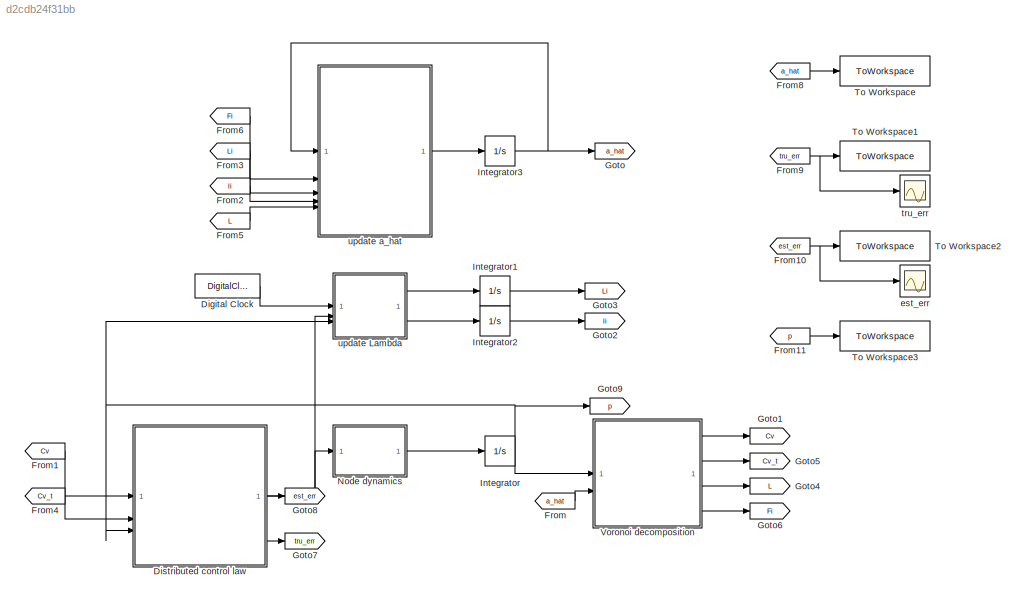
MODEL slx_d2cdb24f31bb
KIND model
CONFIG AbsTol = auto
CONFIG EnableMultiTasking = off
CONFIG FixedStep = step_size
CONFIG MaxStep = 0.01
CONFIG MinStep = 0.001
CONFIG RelTol = 1e-3
CONFIG SampleTimeConstraint = Unconstrained
CONFIG SolverName = ode1
CONFIG StartTime = 0.0
CONFIG StopTime = Tf
BLOCK [DigitalClock] Digital Clock
  SampleTime = step_size
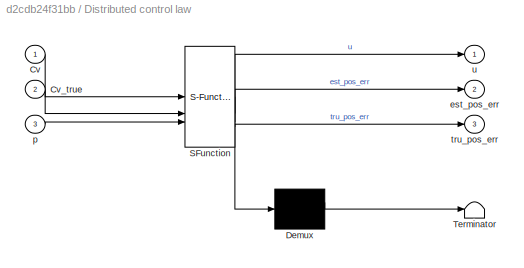
BLOCK [SubSystem] Distributed control law
  ErrorFcn = Stateflow.Translate.translate
  PermitHierarchicalResolution = ExplicitOnly
  SFBlockType = MATLAB Function
  TreatAsAtomicUnit = on
BLOCK [Demux] Distributed control law/ Demux 
  Outputs = 1
BLOCK [S-Function] Distributed control law/ SFunction 
  EnableBusSupport = on
  FunctionName = sf_sfun
  Parameters = K
  PortCounts = [3 4]
  SFcnIsStateOwnerBlock = off
  SFunctionDeploymentMode = off
  Tag = Stateflow S-Function 3
BLOCK [Terminator] Distributed control law/ Terminator 
BLOCK [Inport] Distributed control law/Cv
BLOCK [Inport] Distributed control law/Cv_true
  Port = 2
BLOCK [Outport] Distributed control law/est_pos_err
  Port = 2
BLOCK [Inport] Distributed control law/p
  Port = 3
BLOCK [Outport] Distributed control law/tru_pos_err
  Port = 3
BLOCK [Outport] Distributed control law/u
BLOCK [From] From
  GotoTag = a_hat
BLOCK [From] From1
  GotoTag = Cv
BLOCK [From] From10
  GotoTag = est_err
BLOCK [From] From11
  GotoTag = p
BLOCK [From] From2
  GotoTag = li
BLOCK [From] From3
  GotoTag = Li
BLOCK [From] From4
  GotoTag = Cv_t
BLOCK [From] From5
  GotoTag = L
BLOCK [From] From6
  GotoTag = Fi
BLOCK [From] From8
  GotoTag = a_hat
BLOCK [From] From9
  GotoTag = tru_err
BLOCK [Goto] Goto
  GotoTag = a_hat
BLOCK [Goto] Goto1
  GotoTag = Cv
BLOCK [Goto] Goto2
  GotoTag = li
BLOCK [Goto] Goto3
  GotoTag = Li
BLOCK [Goto] Goto4
  GotoTag = L
BLOCK [Goto] Goto5
  GotoTag = Cv_t
BLOCK [Goto] Goto6
  GotoTag = Fi
BLOCK [Goto] Goto7
  GotoTag = tru_err
BLOCK [Goto] Goto8
  GotoTag = est_err
BLOCK [Goto] Goto9
  GotoTag = p
BLOCK [Integrator] Integrator
  InitialCondition = p0
BLOCK [Integrator] Integrator1
  InitialCondition = Li0
BLOCK [Integrator] Integrator2
  InitialCondition = li0
BLOCK [Integrator] Integrator3
  InitialCondition = a_hat0
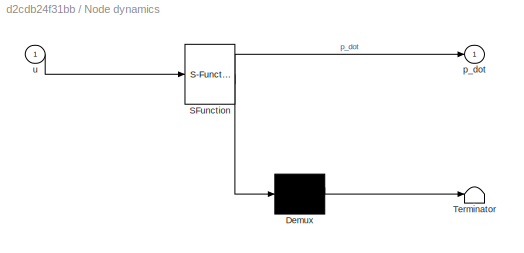
BLOCK [SubSystem] Node dynamics
  ErrorFcn = Stateflow.Translate.translate
  PermitHierarchicalResolution = ExplicitOnly
  SFBlockType = MATLAB Function
  TreatAsAtomicUnit = on
BLOCK [Demux] Node dynamics/ Demux 
  Outputs = 1
BLOCK [S-Function] Node dynamics/ SFunction 
  EnableBusSupport = on
  FunctionName = sf_sfun
  PortCounts = [1 2]
  SFcnIsStateOwnerBlock = off
  SFunctionDeploymentMode = off
  Tag = Stateflow S-Function 2
BLOCK [Terminator] Node dynamics/ Terminator 
BLOCK [Outport] Node dynamics/p_dot
BLOCK [Inport] Node dynamics/u
BLOCK [ToWorkspace] To Workspace
  FixptAsFi = on
  MaxDataPoints = inf
  SampleTime = -1
  SaveFormat = Timeseries
  VariableName = a_hat
BLOCK [ToWorkspace] To Workspace1
  FixptAsFi = on
  MaxDataPoints = inf
  SampleTime = -1
  SaveFormat = Timeseries
  VariableName = tru_err
BLOCK [ToWorkspace] To Workspace2
  FixptAsFi = on
  MaxDataPoints = inf
  SampleTime = -1
  SaveFormat = Timeseries
  VariableName = est_err
BLOCK [ToWorkspace] To Workspace3
  FixptAsFi = on
  MaxDataPoints = inf
  SampleTime = -1
  SaveFormat = Timeseries
  VariableName = p
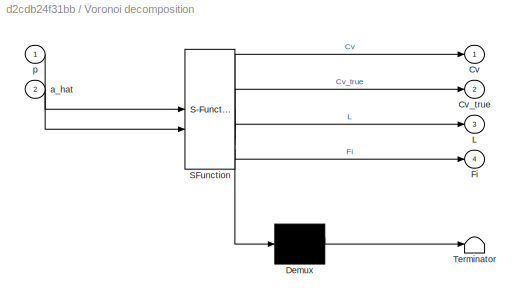
BLOCK [SubSystem] Voronoi decomposition
  ErrorFcn = Stateflow.Translate.translate
  PermitHierarchicalResolution = ExplicitOnly
  SFBlockType = MATLAB Function
  TreatAsAtomicUnit = on
BLOCK [Demux] Voronoi decomposition/ Demux 
  Outputs = 1
BLOCK [S-Function] Voronoi decomposition/ SFunction 
  EnableBusSupport = on
  FunctionName = sf_sfun
  Parameters = n
  PortCounts = [2 5]
  SFcnIsStateOwnerBlock = off
  SFunctionDeploymentMode = off
  Tag = Stateflow S-Function 1
BLOCK [Terminator] Voronoi decomposition/ Terminator 
BLOCK [Outport] Voronoi decomposition/Cv
BLOCK [Outport] Voronoi decomposition/Cv_true
  Port = 2
BLOCK [Outport] Voronoi decomposition/Fi
  Port = 4
BLOCK [Outport] Voronoi decomposition/L
  Port = 3
BLOCK [Inport] Voronoi decomposition/a_hat
  Port = 2
BLOCK [Inport] Voronoi decomposition/p
BLOCK [Scope] est_err
  Floating = off
  NumInputPorts = 1
  ScopeSpecificationString = Simulink.scopes.TimeScopeBlockCfg('CurrentConfiguration', extmgr.ConfigurationSet(extmgr.Configuration('Core','General UI',true),extmgr.Configuration('Core','Source UI',true),extmgr.Configuration('Sources','WiredSimulink',true,'DataLoggingVariableName','ScopeData2'),extmgr.Configuration('Visuals','Time Domain',true,'SerializedDisplays',{struct('MinYLimReal','-0.00714','MaxYLimReal','0.07196','YLab...<+1502ch>
BLOCK [Scope] tru_err
  Floating = off
  NumInputPorts = 1
  ScopeSpecificationString = Simulink.scopes.TimeScopeBlockCfg('CurrentConfiguration', extmgr.ConfigurationSet(extmgr.Configuration('Core','General UI',true),extmgr.Configuration('Core','Source UI',true),extmgr.Configuration('Sources','WiredSimulink',true,'DataLoggingVariableName','ScopeData1'),extmgr.Configuration('Visuals','Time Domain',true,'SerializedDisplays',{struct('MinYLimReal','-0.00783','MaxYLimReal','0.11322','YLab...<+1526ch>
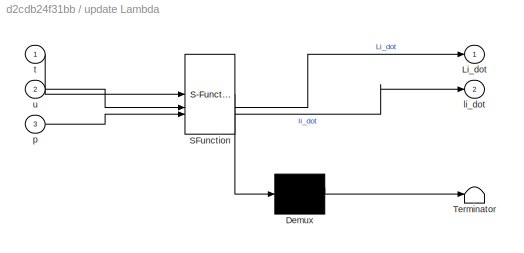
BLOCK [SubSystem] update Lambda
  ErrorFcn = Stateflow.Translate.translate
  PermitHierarchicalResolution = ExplicitOnly
  SFBlockType = MATLAB Function
  TreatAsAtomicUnit = on
BLOCK [Demux] update Lambda/ Demux 
  Outputs = 1
BLOCK [S-Function] update Lambda/ SFunction 
  EnableBusSupport = on
  FunctionName = sf_sfun
  Parameters = K,a,n
  PortCounts = [3 3]
  SFcnIsStateOwnerBlock = off
  SFunctionDeploymentMode = off
  Tag = Stateflow S-Function 4
BLOCK [Terminator] update Lambda/ Terminator 
BLOCK [Outport] update Lambda/Li_dot
BLOCK [Outport] update Lambda/li_dot
  Port = 2
BLOCK [Inport] update Lambda/p
  Port = 3
BLOCK [Inport] update Lambda/t
BLOCK [Inport] update Lambda/u
  Port = 2
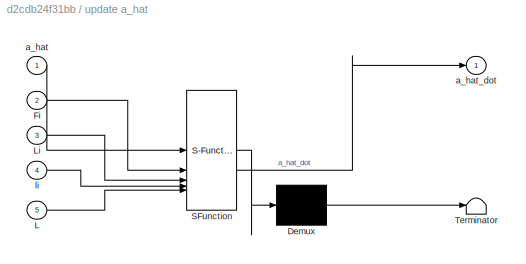
BLOCK [SubSystem] update a_hat
  ErrorFcn = Stateflow.Translate.translate
  PermitHierarchicalResolution = ExplicitOnly
  SFBlockType = MATLAB Function
  TreatAsAtomicUnit = on
BLOCK [Demux] update a_hat/ Demux 
  Outputs = 1
BLOCK [S-Function] update a_hat/ SFunction 
  EnableBusSupport = on
  FunctionName = sf_sfun
  Parameters = Gamma,amin,g,n,psi,step_size
  PortCounts = [5 2]
  SFcnIsStateOwnerBlock = off
  SFunctionDeploymentMode = off
  Tag = Stateflow S-Function 6
BLOCK [Terminator] update a_hat/ Terminator 
BLOCK [Inport] update a_hat/Fi
  Port = 2
BLOCK [Inport] update a_hat/L
  Port = 5
BLOCK [Inport] update a_hat/Li
  Port = 3
BLOCK [Inport] update a_hat/a_hat
BLOCK [Outport] update a_hat/a_hat_dot
BLOCK [Inport] update a_hat/li
  Port = 4
LINE Digital Clock:1 -> update Lambda:1
NET Distributed control law:1 -> Node dynamics:1, update Lambda:2
LINE Distributed control law:2 -> Goto8:1
LINE Distributed control law:3 -> Goto7:1
NET From10:1 -> To Workspace2:1, est_err:1
LINE From11:1 -> To Workspace3:1
LINE From1:1 -> Distributed control law:1
LINE From2:1 -> update a_hat:4
LINE From3:1 -> update a_hat:3
LINE From4:1 -> Distributed control law:2
LINE From5:1 -> update a_hat:5
LINE From6:1 -> update a_hat:2
LINE From8:1 -> To Workspace:1
NET From9:1 -> To Workspace1:1, tru_err:1
LINE From:1 -> Voronoi decomposition:2
LINE Integrator1:1 -> Goto3:1
LINE Integrator2:1 -> Goto2:1
NET Integrator3:1 -> Goto:1, update a_hat:1
NET Integrator:1 -> Distributed control law:3, Goto9:1, Voronoi decomposition:1, update Lambda:3
LINE Node dynamics:1 -> Integrator:1
LINE Voronoi decomposition:1 -> Goto1:1
LINE Voronoi decomposition:2 -> Goto5:1
LINE Voronoi decomposition:3 -> Goto4:1
LINE Voronoi decomposition:4 -> Goto6:1
LINE update Lambda:1 -> Integrator1:1
LINE update Lambda:2 -> Integrator2:1
LINE update a_hat:1 -> Integrator3:1
note: NET lines group one-source signal fan-out (src -> all destinations, sorted); 1:1 wires keep LINE
CHART Voronoi decomposition states=1 transitions=1
  STATE_LABEL 'eML_blk_kernel()'
  STATE_LABEL "SCRIPT:\nfunction [Cv, Cv_true, L, Fi] = fcn(p, a_hat,n)\n    coder.extrinsic('VoronoiDecomposition');\n\n    % preallocation for interpreted matlab functions\n    Cv = zeros(2,n);\n    Cv_true = zeros(2,n);\n    L = zeros(n,n);\n    Fi = zeros(9,9,n);\n    \n    [Cv, Cv_true, L, Fi] = VoronoiDecomposition(p, a_hat);\n\nend"
CHART Node dynamics states=1 transitions=1
  STATE_LABEL 'eML_blk_kernel()'
  STATE_LABEL 'SCRIPT:\nfunction p_dot = fcn(u)\n\n    p_dot = u;\nend'
CHART Distributed control law states=1 transitions=1
  STATE_LABEL 'eML_blk_kernel()'
  STATE_LABEL "SCRIPT:\nfunction [u, est_pos_err, tru_pos_err] = fcn(Cv,Cv_true, p, K)\n    px = p(:,1);\n    py = p(:,2);\n\n    ux = K(1,1)*(Cv(1,:)' - px);\n    uy = K(2,2)*(Cv(2,:)' - py);\n    \n    u = [ux, uy];\n\n    est_pos_err = mean(vecnorm([(Cv(1,:)' - px),(Cv(2,:)' - py)]'));\n    tru_pos_err = mean(vecnorm([(Cv_true(1,:)' - px),(Cv_true(2,:)' - py)]'));\n\n\n"
CHART update Lambda states=1 transitions=1
  STATE_LABEL 'eML_blk_kernel()'
  STATE_LABEL "SCRIPT:\nfunction [Li_dot, li_dot] = fcn(t, u, p, n, K, a)\n    \n    coder.extrinsic('kappa');\n\n    ux = u(:,1);\n    uy = u(:,2);\n\n    px = p(:,1);\n    py = p(:,2);\n\n    li_dot = zeros(9, n);\n    Li_dot_ = zeros(9,9,n);\n    for i = 1:n\n\n        if t>10\n            w_t = 0;\n        else\n            w_t = norm([ux(i) uy(i)])^2/norm(K)^2; % Data weighting function\n        end\n        ki = kappa(px(i),p...<+141ch>"
CHART update a_hat states=1 transitions=1
  STATE_LABEL 'eML_blk_kernel()'
  STATE_LABEL "SCRIPT:\nfunction a_hat_dot = fcn(a_hat, Fi, Li, li, L, psi, g, n, Gamma, amin, step_size)\n\n% Reshape back from integrator\nLi = reshape(Li, 9, 9, n);\na_hat_dot = zeros(size(a_hat));\n\n% Adaption laws for paramter estimate\ns = a_hat*L';\nfor i = 1:n\n    ai_hat_dot = -(Fi(:,:,i)*a_hat(:,i)) - g*(Li(:,:,i)*a_hat(:,i) - li(:,i)) - psi*s(:,i);\n\n    % prevent a_hat to become zero\n    Iproji = zeros(9,1);\n ...<+137ch>"
CHART  states=0 transitions=0
CHART  states=0 transitions=0
CHART  states=0 transitions=0
CHART  states=0 transitions=0
CHART  states=0 transitions=0
